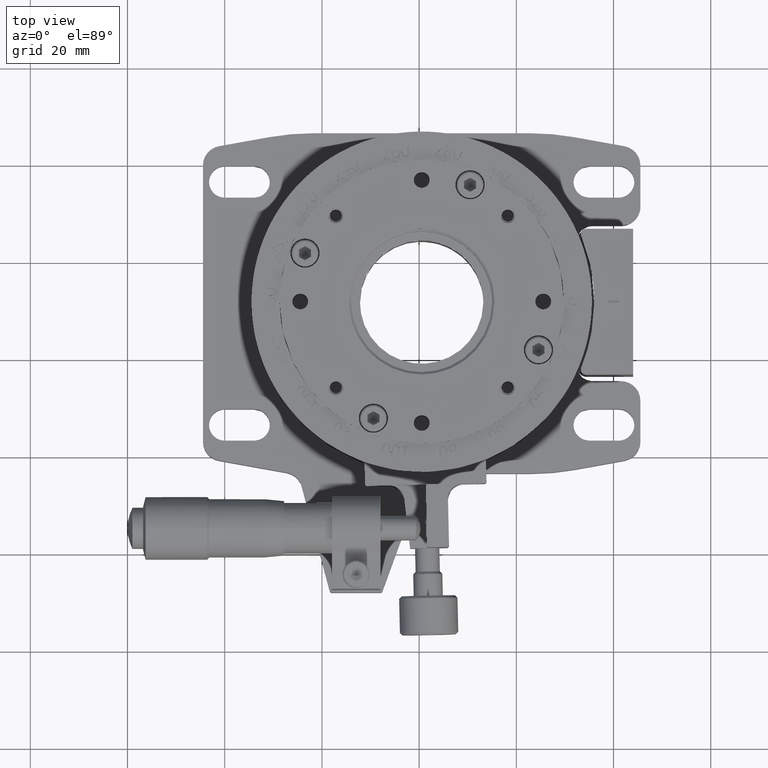
[diagram: clean part render]
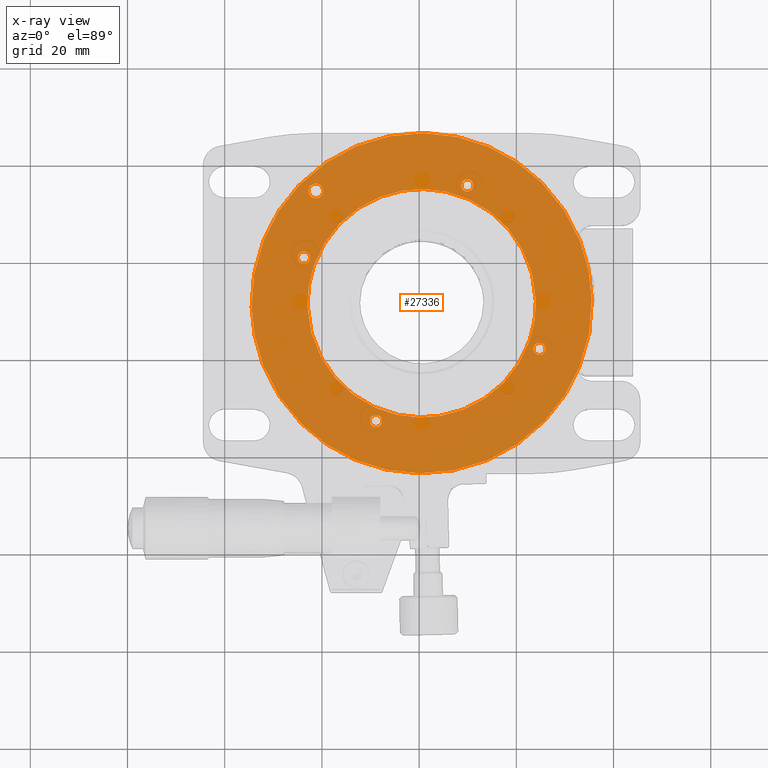
[diagram: x-ray — body ghosted, one internal face saturated and labeled with its STEP entity id]
A machine part, top view, then the same camera in x-ray: the body is ghosted and one INTERNAL B-rep face — a face not visible from any outside direction — is saturated and labeled: STEP entity #27336.
In plain terms, the highlighted face is a freeform B-spline surface patch.
Its self-contained STEP definition (entity closure, byte-faithful):
#599=FACE_BOUND('',#32053,.T.);
#600=FACE_BOUND('',#32054,.T.);
#601=FACE_BOUND('',#32055,.T.);
#602=FACE_BOUND('',#32056,.T.);
#603=FACE_BOUND('',#32057,.T.);
#604=FACE_BOUND('',#32058,.T.);
#2287=(
BOUNDED_CURVE()
B_SPLINE_CURVE(2,(#157761,#157762,#157763,#157764,#157765),
 .UNSPECIFIED.,.F.,.F.)
B_SPLINE_CURVE_WITH_KNOTS((3,2,3),(-219.911485751286,-164.933614313464,
-109.955742875643),.UNSPECIFIED.)
CURVE()
GEOMETRIC_REPRESENTATION_ITEM()
RATIONAL_B_SPLINE_CURVE((1.,0.707106781186548,1.,0.707106781186548,1.))
REPRESENTATION_ITEM('')
);
#2288=(
BOUNDED_CURVE()
B_SPLINE_CURVE(2,(#157766,#157767,#157768,#157769,#157770),
 .UNSPECIFIED.,.F.,.F.)
B_SPLINE_CURVE_WITH_KNOTS((3,2,3),(-219.911485751286,-164.933614313464,
-109.955742875643),.UNSPECIFIED.)
CURVE()
GEOMETRIC_REPRESENTATION_ITEM()
RATIONAL_B_SPLINE_CURVE((1.,0.707106781186548,1.,0.707106781186548,1.))
REPRESENTATION_ITEM('')
);
#2289=(
BOUNDED_CURVE()
B_SPLINE_CURVE(2,(#157771,#157772,#157773,#157774,#157775),
 .UNSPECIFIED.,.F.,.F.)
B_SPLINE_CURVE_WITH_KNOTS((3,2,3),(-109.955742875643,-54.9778714378214,
0.),.UNSPECIFIED.)
CURVE()
GEOMETRIC_REPRESENTATION_ITEM()
RATIONAL_B_SPLINE_CURVE((1.,0.707106781186548,1.,0.707106781186548,1.))
REPRESENTATION_ITEM('')
);
#2290=(
BOUNDED_CURVE()
B_SPLINE_CURVE(2,(#157776,#157777,#157778,#157779,#157780),
 .UNSPECIFIED.,.F.,.F.)
B_SPLINE_CURVE_WITH_KNOTS((3,2,3),(-109.955742875643,-54.9778714378214,
0.),.UNSPECIFIED.)
CURVE()
GEOMETRIC_REPRESENTATION_ITEM()
RATIONAL_B_SPLINE_CURVE((1.,0.707106781186548,1.,0.707106781186548,1.))
REPRESENTATION_ITEM('')
);
#2291=(
BOUNDED_CURVE()
B_SPLINE_CURVE(2,(#157781,#157782,#157783,#157784,#157785),
 .UNSPECIFIED.,.F.,.F.)
B_SPLINE_CURVE_WITH_KNOTS((3,2,3),(4.71238898038469,7.06858347057703,9.42477796076938),
 .UNSPECIFIED.)
CURVE()
GEOMETRIC_REPRESENTATION_ITEM()
RATIONAL_B_SPLINE_CURVE((1.,0.707106781186548,1.,0.707106781186548,1.))
REPRESENTATION_ITEM('')
);
#2292=(
BOUNDED_CURVE()
B_SPLINE_CURVE(2,(#157786,#157787,#157788,#157789,#157790),
 .UNSPECIFIED.,.F.,.F.)
B_SPLINE_CURVE_WITH_KNOTS((3,2,3),(4.71238898038469,7.06858347057703,9.42477796076938),
 .UNSPECIFIED.)
CURVE()
GEOMETRIC_REPRESENTATION_ITEM()
RATIONAL_B_SPLINE_CURVE((1.,0.707106781186548,1.,0.707106781186548,1.))
REPRESENTATION_ITEM('')
);
#2293=(
BOUNDED_CURVE()
B_SPLINE_CURVE(2,(#157791,#157792,#157793,#157794,#157795),
 .UNSPECIFIED.,.F.,.F.)
B_SPLINE_CURVE_WITH_KNOTS((3,2,3),(0.,2.35619449019234,4.71238898038469),
 .UNSPECIFIED.)
CURVE()
GEOMETRIC_REPRESENTATION_ITEM()
RATIONAL_B_SPLINE_CURVE((1.,0.707106781186548,1.,0.707106781186548,1.))
REPRESENTATION_ITEM('')
);
#2294=(
BOUNDED_CURVE()
B_SPLINE_CURVE(2,(#157796,#157797,#157798,#157799,#157800),
 .UNSPECIFIED.,.F.,.F.)
B_SPLINE_CURVE_WITH_KNOTS((3,2,3),(0.,2.35619449019234,4.71238898038469),
 .UNSPECIFIED.)
CURVE()
GEOMETRIC_REPRESENTATION_ITEM()
RATIONAL_B_SPLINE_CURVE((1.,0.707106781186548,1.,0.707106781186548,1.))
REPRESENTATION_ITEM('')
);
#2295=(
BOUNDED_CURVE()
B_SPLINE_CURVE(2,(#157801,#157802,#157803,#157804,#157805),
 .UNSPECIFIED.,.F.,.F.)
B_SPLINE_CURVE_WITH_KNOTS((3,2,3),(3.92699081698724,5.89048622548086,7.85398163397448),
 .UNSPECIFIED.)
CURVE()
GEOMETRIC_REPRESENTATION_ITEM()
RATIONAL_B_SPLINE_CURVE((1.,0.707106781186548,1.,0.707106781186548,1.))
REPRESENTATION_ITEM('')
);
#2296=(
BOUNDED_CURVE()
B_SPLINE_CURVE(2,(#157806,#157807,#157808,#157809,#157810),
 .UNSPECIFIED.,.F.,.F.)
B_SPLINE_CURVE_WITH_KNOTS((3,2,3),(3.92699081698724,5.89048622548086,7.85398163397448),
 .UNSPECIFIED.)
CURVE()
GEOMETRIC_REPRESENTATION_ITEM()
RATIONAL_B_SPLINE_CURVE((1.,0.707106781186548,1.,0.707106781186548,1.))
REPRESENTATION_ITEM('')
);
#2297=(
BOUNDED_CURVE()
B_SPLINE_CURVE(2,(#157811,#157812,#157813,#157814,#157815),
 .UNSPECIFIED.,.F.,.F.)
B_SPLINE_CURVE_WITH_KNOTS((3,2,3),(0.,1.96349540849362,3.92699081698724),
 .UNSPECIFIED.)
CURVE()
GEOMETRIC_REPRESENTATION_ITEM()
RATIONAL_B_SPLINE_CURVE((1.,0.707106781186548,1.,0.707106781186548,1.))
REPRESENTATION_ITEM('')
);
#2298=(
BOUNDED_CURVE()
B_SPLINE_CURVE(2,(#157816,#157817,#157818,#157819,#157820),
 .UNSPECIFIED.,.F.,.F.)
B_SPLINE_CURVE_WITH_KNOTS((3,2,3),(0.,1.96349540849362,3.92699081698724),
 .UNSPECIFIED.)
CURVE()
GEOMETRIC_REPRESENTATION_ITEM()
RATIONAL_B_SPLINE_CURVE((1.,0.707106781186548,1.,0.707106781186548,1.))
REPRESENTATION_ITEM('')
);
#2299=(
BOUNDED_CURVE()
B_SPLINE_CURVE(2,(#157821,#157822,#157823,#157824,#157825),
 .UNSPECIFIED.,.F.,.F.)
B_SPLINE_CURVE_WITH_KNOTS((3,2,3),(3.92699081698724,5.89048622548086,7.85398163397448),
 .UNSPECIFIED.)
CURVE()
GEOMETRIC_REPRESENTATION_ITEM()
RATIONAL_B_SPLINE_CURVE((1.,0.707106781186548,1.,0.707106781186548,1.))
REPRESENTATION_ITEM('')
);
#2300=(
BOUNDED_CURVE()
B_SPLINE_CURVE(2,(#157826,#157827,#157828,#157829,#157830),
 .UNSPECIFIED.,.F.,.F.)
B_SPLINE_CURVE_WITH_KNOTS((3,2,3),(3.92699081698724,5.89048622548086,7.85398163397448),
 .UNSPECIFIED.)
CURVE()
GEOMETRIC_REPRESENTATION_ITEM()
RATIONAL_B_SPLINE_CURVE((1.,0.707106781186548,1.,0.707106781186548,1.))
REPRESENTATION_ITEM('')
);
#2301=(
BOUNDED_CURVE()
B_SPLINE_CURVE(2,(#157831,#157832,#157833,#157834,#157835),
 .UNSPECIFIED.,.F.,.F.)
B_SPLINE_CURVE_WITH_KNOTS((3,2,3),(0.,1.96349540849362,3.92699081698724),
 .UNSPECIFIED.)
CURVE()
GEOMETRIC_REPRESENTATION_ITEM()
RATIONAL_B_SPLINE_CURVE((1.,0.707106781186548,1.,0.707106781186548,1.))
REPRESENTATION_ITEM('')
);
#2302=(
BOUNDED_CURVE()
B_SPLINE_CURVE(2,(#157836,#157837,#157838,#157839,#157840),
 .UNSPECIFIED.,.F.,.F.)
B_SPLINE_CURVE_WITH_KNOTS((3,2,3),(0.,1.96349540849362,3.92699081698724),
 .UNSPECIFIED.)
CURVE()
GEOMETRIC_REPRESENTATION_ITEM()
RATIONAL_B_SPLINE_CURVE((1.,0.707106781186548,1.,0.707106781186548,1.))
REPRESENTATION_ITEM('')
);
#2303=(
BOUNDED_CURVE()
B_SPLINE_CURVE(2,(#157841,#157842,#157843,#157844,#157845),
 .UNSPECIFIED.,.F.,.F.)
B_SPLINE_CURVE_WITH_KNOTS((3,2,3),(3.92699081698724,5.89048622548086,7.85398163397448),
 .UNSPECIFIED.)
CURVE()
GEOMETRIC_REPRESENTATION_ITEM()
RATIONAL_B_SPLINE_CURVE((1.,0.707106781186548,1.,0.707106781186548,1.))
REPRESENTATION_ITEM('')
);
#2304=(
BOUNDED_CURVE()
B_SPLINE_CURVE(2,(#157846,#157847,#157848,#157849,#157850),
 .UNSPECIFIED.,.F.,.F.)
B_SPLINE_CURVE_WITH_KNOTS((3,2,3),(3.92699081698724,5.89048622548086,7.85398163397448),
 .UNSPECIFIED.)
CURVE()
GEOMETRIC_REPRESENTATION_ITEM()
RATIONAL_B_SPLINE_CURVE((1.,0.707106781186548,1.,0.707106781186548,1.))
REPRESENTATION_ITEM('')
);
#2305=(
BOUNDED_CURVE()
B_SPLINE_CURVE(2,(#157851,#157852,#157853,#157854,#157855),
 .UNSPECIFIED.,.F.,.F.)
B_SPLINE_CURVE_WITH_KNOTS((3,2,3),(0.,1.96349540849362,3.92699081698724),
 .UNSPECIFIED.)
CURVE()
GEOMETRIC_REPRESENTATION_ITEM()
RATIONAL_B_SPLINE_CURVE((1.,0.707106781186548,1.,0.707106781186548,1.))
REPRESENTATION_ITEM('')
);
#2306=(
BOUNDED_CURVE()
B_SPLINE_CURVE(2,(#157856,#157857,#157858,#157859,#157860),
 .UNSPECIFIED.,.F.,.F.)
B_SPLINE_CURVE_WITH_KNOTS((3,2,3),(0.,1.96349540849362,3.92699081698724),
 .UNSPECIFIED.)
CURVE()
GEOMETRIC_REPRESENTATION_ITEM()
RATIONAL_B_SPLINE_CURVE((1.,0.707106781186548,1.,0.707106781186548,1.))
REPRESENTATION_ITEM('')
);
#2307=(
BOUNDED_CURVE()
B_SPLINE_CURVE(2,(#157861,#157862,#157863,#157864,#157865),
 .UNSPECIFIED.,.F.,.F.)
B_SPLINE_CURVE_WITH_KNOTS((3,2,3),(3.92699081698724,5.89048622548086,7.85398163397448),
 .UNSPECIFIED.)
CURVE()
GEOMETRIC_REPRESENTATION_ITEM()
RATIONAL_B_SPLINE_CURVE((1.,0.707106781186548,1.,0.707106781186548,1.))
REPRESENTATION_ITEM('')
);
#2308=(
BOUNDED_CURVE()
B_SPLINE_CURVE(2,(#157866,#157867,#157868,#157869,#157870),
 .UNSPECIFIED.,.F.,.F.)
B_SPLINE_CURVE_WITH_KNOTS((3,2,3),(3.92699081698724,5.89048622548086,7.85398163397448),
 .UNSPECIFIED.)
CURVE()
GEOMETRIC_REPRESENTATION_ITEM()
RATIONAL_B_SPLINE_CURVE((1.,0.707106781186548,1.,0.707106781186548,1.))
REPRESENTATION_ITEM('')
);
#2309=(
BOUNDED_CURVE()
B_SPLINE_CURVE(2,(#157871,#157872,#157873,#157874,#157875),
 .UNSPECIFIED.,.F.,.F.)
B_SPLINE_CURVE_WITH_KNOTS((3,2,3),(0.,1.96349540849362,3.92699081698724),
 .UNSPECIFIED.)
CURVE()
GEOMETRIC_REPRESENTATION_ITEM()
RATIONAL_B_SPLINE_CURVE((1.,0.707106781186548,1.,0.707106781186548,1.))
REPRESENTATION_ITEM('')
);
#2310=(
BOUNDED_CURVE()
B_SPLINE_CURVE(2,(#157876,#157877,#157878,#157879,#157880),
 .UNSPECIFIED.,.F.,.F.)
B_SPLINE_CURVE_WITH_KNOTS((3,2,3),(0.,1.96349540849362,3.92699081698724),
 .UNSPECIFIED.)
CURVE()
GEOMETRIC_REPRESENTATION_ITEM()
RATIONAL_B_SPLINE_CURVE((1.,0.707106781186548,1.,0.707106781186548,1.))
REPRESENTATION_ITEM('')
);
#2311=(
BOUNDED_CURVE()
B_SPLINE_CURVE(2,(#157881,#157882,#157883,#157884,#157885),
 .UNSPECIFIED.,.F.,.F.)
B_SPLINE_CURVE_WITH_KNOTS((3,2,3),(73.8274273593601,110.74114103904,147.65485471872),
 .UNSPECIFIED.)
CURVE()
GEOMETRIC_REPRESENTATION_ITEM()
RATIONAL_B_SPLINE_CURVE((1.,0.707106781186548,1.,0.707106781186548,1.))
REPRESENTATION_ITEM('')
);
#2312=(
BOUNDED_CURVE()
B_SPLINE_CURVE(2,(#157886,#157887,#157888,#157889,#157890),
 .UNSPECIFIED.,.F.,.F.)
B_SPLINE_CURVE_WITH_KNOTS((3,2,3),(73.8274273593601,110.74114103904,147.65485471872),
 .UNSPECIFIED.)
CURVE()
GEOMETRIC_REPRESENTATION_ITEM()
RATIONAL_B_SPLINE_CURVE((1.,0.707106781186548,1.,0.707106781186548,1.))
REPRESENTATION_ITEM('')
);
#2313=(
BOUNDED_CURVE()
B_SPLINE_CURVE(2,(#157891,#157892,#157893,#157894,#157895),
 .UNSPECIFIED.,.F.,.F.)
B_SPLINE_CURVE_WITH_KNOTS((3,2,3),(0.,36.9137136796801,73.8274273593601),
 .UNSPECIFIED.)
CURVE()
GEOMETRIC_REPRESENTATION_ITEM()
RATIONAL_B_SPLINE_CURVE((1.,0.707106781186548,1.,0.707106781186548,1.))
REPRESENTATION_ITEM('')
);
#2314=(
BOUNDED_CURVE()
B_SPLINE_CURVE(2,(#157896,#157897,#157898,#157899,#157900),
 .UNSPECIFIED.,.F.,.F.)
B_SPLINE_CURVE_WITH_KNOTS((3,2,3),(0.,36.9137136796801,73.8274273593601),
 .UNSPECIFIED.)
CURVE()
GEOMETRIC_REPRESENTATION_ITEM()
RATIONAL_B_SPLINE_CURVE((1.,0.707106781186548,1.,0.707106781186548,1.))
REPRESENTATION_ITEM('')
);
#27336=ADVANCED_FACE('',(#29666,#599,#600,#601,#602,#603,#604),#129692,
 .T.);
#29666=FACE_OUTER_BOUND('',#32052,.T.);
#32052=EDGE_LOOP('',(#36891,#36892));
#32053=EDGE_LOOP('',(#36893,#36894));
#32054=EDGE_LOOP('',(#36895,#36896));
#32055=EDGE_LOOP('',(#36897,#36898));
#32056=EDGE_LOOP('',(#36899,#36900));
#32057=EDGE_LOOP('',(#36901,#36902));
#32058=EDGE_LOOP('',(#36903,#36904));
#36891=ORIENTED_EDGE('',*,*,#86653,.T.);
#36892=ORIENTED_EDGE('',*,*,#86654,.T.);
#36893=ORIENTED_EDGE('',*,*,#86655,.T.);
#36894=ORIENTED_EDGE('',*,*,#86656,.T.);
#36895=ORIENTED_EDGE('',*,*,#86657,.T.);
#36896=ORIENTED_EDGE('',*,*,#86658,.T.);
#36897=ORIENTED_EDGE('',*,*,#86659,.T.);
#36898=ORIENTED_EDGE('',*,*,#86660,.T.);
#36899=ORIENTED_EDGE('',*,*,#86661,.T.);
#36900=ORIENTED_EDGE('',*,*,#86662,.T.);
#36901=ORIENTED_EDGE('',*,*,#86663,.T.);
#36902=ORIENTED_EDGE('',*,*,#86664,.T.);
#36903=ORIENTED_EDGE('',*,*,#86665,.T.);
#36904=ORIENTED_EDGE('',*,*,#86666,.T.);
#49565=PCURVE('',#129692,#62239);
#49566=PCURVE('',#129692,#62240);
#49567=PCURVE('',#129692,#62241);
#49568=PCURVE('',#129692,#62242);
#49569=PCURVE('',#129692,#62243);
#49570=PCURVE('',#129692,#62244);
#49571=PCURVE('',#129692,#62245);
#49572=PCURVE('',#129692,#62246);
#49573=PCURVE('',#129692,#62247);
#49574=PCURVE('',#129692,#62248);
#49575=PCURVE('',#129692,#62249);
#49576=PCURVE('',#129692,#62250);
#49577=PCURVE('',#129692,#62251);
#49578=PCURVE('',#129692,#62252);
#62239=DEFINITIONAL_REPRESENTATION('',(#2288),#230981);
#62240=DEFINITIONAL_REPRESENTATION('',(#2290),#230981);
#62241=DEFINITIONAL_REPRESENTATION('',(#2292),#230981);
#62242=DEFINITIONAL_REPRESENTATION('',(#2294),#230981);
#62243=DEFINITIONAL_REPRESENTATION('',(#2296),#230981);
#62244=DEFINITIONAL_REPRESENTATION('',(#2298),#230981);
#62245=DEFINITIONAL_REPRESENTATION('',(#2300),#230981);
#62246=DEFINITIONAL_REPRESENTATION('',(#2302),#230981);
#62247=DEFINITIONAL_REPRESENTATION('',(#2304),#230981);
#62248=DEFINITIONAL_REPRESENTATION('',(#2306),#230981);
#62249=DEFINITIONAL_REPRESENTATION('',(#2308),#230981);
#62250=DEFINITIONAL_REPRESENTATION('',(#2310),#230981);
#62251=DEFINITIONAL_REPRESENTATION('',(#2312),#230981);
#62252=DEFINITIONAL_REPRESENTATION('',(#2314),#230981);
#74553=SURFACE_CURVE('',#2287,(#49565),.PCURVE_S1.);
#74554=SURFACE_CURVE('',#2289,(#49566),.PCURVE_S1.);
#74555=SURFACE_CURVE('',#2291,(#49567),.PCURVE_S1.);
#74556=SURFACE_CURVE('',#2293,(#49568),.PCURVE_S1.);
#74557=SURFACE_CURVE('',#2295,(#49569),.PCURVE_S1.);
#74558=SURFACE_CURVE('',#2297,(#49570),.PCURVE_S1.);
#74559=SURFACE_CURVE('',#2299,(#49571),.PCURVE_S1.);
#74560=SURFACE_CURVE('',#2301,(#49572),.PCURVE_S1.);
#74561=SURFACE_CURVE('',#2303,(#49573),.PCURVE_S1.);
#74562=SURFACE_CURVE('',#2305,(#49574),.PCURVE_S1.);
#74563=SURFACE_CURVE('',#2307,(#49575),.PCURVE_S1.);
#74564=SURFACE_CURVE('',#2309,(#49576),.PCURVE_S1.);
#74565=SURFACE_CURVE('',#2311,(#49577),.PCURVE_S1.);
#74566=SURFACE_CURVE('',#2313,(#49578),.PCURVE_S1.);
#86653=EDGE_CURVE('',#120040,#120041,#74553,.T.);
#86654=EDGE_CURVE('',#120041,#120040,#74554,.T.);
#86655=EDGE_CURVE('',#120043,#120042,#74555,.T.);
#86656=EDGE_CURVE('',#120042,#120043,#74556,.T.);
#86657=EDGE_CURVE('',#120045,#120044,#74557,.T.);
#86658=EDGE_CURVE('',#120044,#120045,#74558,.T.);
#86659=EDGE_CURVE('',#120047,#120046,#74559,.T.);
#86660=EDGE_CURVE('',#120046,#120047,#74560,.T.);
#86661=EDGE_CURVE('',#120049,#120048,#74561,.T.);
#86662=EDGE_CURVE('',#120048,#120049,#74562,.T.);
#86663=EDGE_CURVE('',#120051,#120050,#74563,.T.);
#86664=EDGE_CURVE('',#120050,#120051,#74564,.T.);
#86665=EDGE_CURVE('',#120053,#120052,#74565,.T.);
#86666=EDGE_CURVE('',#120052,#120053,#74566,.T.);
#120040=VERTEX_POINT('',#157747);
#120041=VERTEX_POINT('',#157748);
#120042=VERTEX_POINT('',#157749);
#120043=VERTEX_POINT('',#157750);
#120044=VERTEX_POINT('',#157751);
#120045=VERTEX_POINT('',#157752);
#120046=VERTEX_POINT('',#157753);
#120047=VERTEX_POINT('',#157754);
#120048=VERTEX_POINT('',#157755);
#120049=VERTEX_POINT('',#157756);
#120050=VERTEX_POINT('',#157757);
#120051=VERTEX_POINT('',#157758);
#120052=VERTEX_POINT('',#157759);
#120053=VERTEX_POINT('',#157760);
#129692=B_SPLINE_SURFACE_WITH_KNOTS('',1,1,((#157743,#157744),(#157745,
#157746)),.UNSPECIFIED.,.F.,.F.,.F.,(2,2),(2,2),(-43.9250967046672,43.9250967046672),
(-43.9250967046672,43.9250967046672),.UNSPECIFIED.);
#157743=CARTESIAN_POINT('',(89.9016646918699,-77.9263176725837,26.4953598283897));
#157744=CARTESIAN_POINT('',(87.9263176725838,9.90166469187042,26.4953598283897));
#157745=CARTESIAN_POINT('',(2.07368232741578,-79.9016646918698,26.4953598283897));
#157746=CARTESIAN_POINT('',(0.0983353081296833,7.92631767258433,26.4953598283897));
#157747=CARTESIAN_POINT('',(79.991150997617,-34.2130108882869,26.4953598283897));
#157748=CARTESIAN_POINT('',(10.0088490023826,-35.7869891117125,26.4953598283897));
#157749=CARTESIAN_POINT('',(24.7299348912218,-11.8888173136989,26.4953598283897));
#157750=CARTESIAN_POINT('',(21.7299348912218,-11.8888173136989,26.4953598283897));
#157751=CARTESIAN_POINT('',(67.9888352908157,-44.4352415103427,26.4953598283897));
#157752=CARTESIAN_POINT('',(70.4882032192169,-44.3790280023633,26.4953598283897));
#157753=CARTESIAN_POINT('',(53.1574507921525,-10.7895874989729,26.4953598283897));
#157754=CARTESIAN_POINT('',(55.6568187205537,-10.7333739909933,26.4953598283897));
#157755=CARTESIAN_POINT('',(19.5117967807826,-25.6209719976361,26.4953598283897));
#157756=CARTESIAN_POINT('',(22.0111647091838,-25.5647584896567,26.4953598283897));
#157757=CARTESIAN_POINT('',(34.3431812794459,-59.266626009006,26.4953598283897));
#157758=CARTESIAN_POINT('',(36.8425492078471,-59.2104125010264,26.4953598283897));
#157759=CARTESIAN_POINT('',(68.4940585269713,-34.4715930249925,26.4953598283897));
#157760=CARTESIAN_POINT('',(21.5059414730283,-35.5284069750069,26.4953598283897));
#157761=CARTESIAN_POINT('',(79.991150997617,-34.2130108882869,26.4953598283897));
#157762=CARTESIAN_POINT('',(80.7781401093298,-69.2041618859041,26.4953598283897));
#157763=CARTESIAN_POINT('',(45.7869891117126,-69.9911509976169,26.4953598283897));
#157764=CARTESIAN_POINT('',(10.7958381140954,-70.7781401093297,26.4953598283897));
#157765=CARTESIAN_POINT('',(10.0088490023826,-35.7869891117125,26.4953598283897));
#157766=CARTESIAN_POINT('',(-35.,-3.98570065840431E-14));
#157767=CARTESIAN_POINT('',(-35.,-35.));
#157768=CARTESIAN_POINT('',(4.2632564145606E-14,-35.));
#157769=CARTESIAN_POINT('',(35.0000000000001,-35.));
#157770=CARTESIAN_POINT('',(35.,3.96349619791181E-14));
#157771=CARTESIAN_POINT('',(10.0088490023826,-35.7869891117125,26.4953598283897));
#157772=CARTESIAN_POINT('',(9.22185989066983,-0.795838114095321,26.4953598283897));
#157773=CARTESIAN_POINT('',(44.213010888287,-0.00884900238252584,26.4953598283897));
#157774=CARTESIAN_POINT('',(79.2041618859042,0.778140109330265,26.4953598283897));
#157775=CARTESIAN_POINT('',(79.991150997617,-34.2130108882869,26.4953598283897));
#157776=CARTESIAN_POINT('',(35.,3.96349619791181E-14));
#157777=CARTESIAN_POINT('',(35.,35.));
#157778=CARTESIAN_POINT('',(-3.5527136788005E-14,35.));
#157779=CARTESIAN_POINT('',(-35.0000000000001,35.));
#157780=CARTESIAN_POINT('',(-35.,-3.98570065840431E-14));
#157781=CARTESIAN_POINT('',(21.7299348912218,-11.8888173136989,26.4953598283897));
#157782=CARTESIAN_POINT('',(21.7299348912218,-13.3888173136989,26.4953598283897));
#157783=CARTESIAN_POINT('',(23.2299348912218,-13.3888173136989,26.4953598283897));
#157784=CARTESIAN_POINT('',(24.7299348912218,-13.3888173136989,26.4953598283897));
#157785=CARTESIAN_POINT('',(24.7299348912218,-11.8888173136989,26.4953598283897));
#157786=CARTESIAN_POINT('',(22.7445175089345,23.628576313695));
#157787=CARTESIAN_POINT('',(22.7782456137222,22.1289555566542));
#157788=CARTESIAN_POINT('',(21.2786248566815,22.0952274518665));
#157789=CARTESIAN_POINT('',(19.7790040996408,22.0614993470789));
#157790=CARTESIAN_POINT('',(19.7452759948531,23.5611201041196));
#157791=CARTESIAN_POINT('',(24.7299348912218,-11.8888173136989,26.4953598283897));
#157792=CARTESIAN_POINT('',(24.7299348912218,-10.3888173136989,26.4953598283897));
#157793=CARTESIAN_POINT('',(23.2299348912218,-10.3888173136989,26.4953598283897));
#157794=CARTESIAN_POINT('',(21.7299348912218,-10.3888173136989,26.4953598283897));
#157795=CARTESIAN_POINT('',(21.7299348912218,-11.8888173136989,26.4953598283897));
#157796=CARTESIAN_POINT('',(19.7452759948531,23.5611201041196));
#157797=CARTESIAN_POINT('',(19.7115478900654,25.0607408611603));
#157798=CARTESIAN_POINT('',(21.2111686471061,25.094468965948));
#157799=CARTESIAN_POINT('',(22.7107894041469,25.1281970707357));
#157800=CARTESIAN_POINT('',(22.7445175089345,23.628576313695));
#157801=CARTESIAN_POINT('',(70.4882032192169,-44.3790280023633,26.4953598283897));
#157802=CARTESIAN_POINT('',(70.4600964652272,-43.1293440381627,26.4953598283897));
#157803=CARTESIAN_POINT('',(69.2104125010266,-43.1574507921524,26.4953598283897));
#157804=CARTESIAN_POINT('',(67.960728536826,-43.1855575461421,26.4953598283897));
#157805=CARTESIAN_POINT('',(67.9888352908157,-44.4352415103427,26.4953598283897));
#157806=CARTESIAN_POINT('',(-25.2708678452934,-9.94976924149236));
#157807=CARTESIAN_POINT('',(-25.2708678452934,-8.69976924149236));
#157808=CARTESIAN_POINT('',(-24.0208678452934,-8.69976924149231));
#157809=CARTESIAN_POINT('',(-22.7708678452934,-8.69976924149226));
#157810=CARTESIAN_POINT('',(-22.7708678452934,-9.94976924149227));
#157811=CARTESIAN_POINT('',(67.9888352908157,-44.4352415103427,26.4953598283897));
#157812=CARTESIAN_POINT('',(68.0169420448054,-45.6849254745433,26.4953598283897));
#157813=CARTESIAN_POINT('',(69.266626009006,-45.6568187205536,26.4953598283897));
#157814=CARTESIAN_POINT('',(70.5163099732066,-45.6287119665639,26.4953598283897));
#157815=CARTESIAN_POINT('',(70.4882032192169,-44.3790280023633,26.4953598283897));
#157816=CARTESIAN_POINT('',(-22.7708678452934,-9.94976924149227));
#157817=CARTESIAN_POINT('',(-22.7708678452933,-11.1997692414923));
#157818=CARTESIAN_POINT('',(-24.0208678452933,-11.1997692414923));
#157819=CARTESIAN_POINT('',(-25.2708678452933,-11.1997692414924));
#157820=CARTESIAN_POINT('',(-25.2708678452934,-9.94976924149236));
#157821=CARTESIAN_POINT('',(55.6568187205537,-10.7333739909933,26.4953598283897));
#157822=CARTESIAN_POINT('',(55.6287119665639,-9.48369002679269,26.4953598283897));
#157823=CARTESIAN_POINT('',(54.3790280023633,-9.51179678078249,26.4953598283897));
#157824=CARTESIAN_POINT('',(53.1293440381627,-9.53990353477229,26.4953598283897));
#157825=CARTESIAN_POINT('',(53.1574507921525,-10.7895874989729,26.4953598283897));
#157826=CARTESIAN_POINT('',(-11.1997692414923,24.0208678452935));
#157827=CARTESIAN_POINT('',(-11.1997692414923,25.2708678452935));
#157828=CARTESIAN_POINT('',(-9.94976924149226,25.2708678452935));
#157829=CARTESIAN_POINT('',(-8.69976924149225,25.2708678452934));
#157830=CARTESIAN_POINT('',(-8.69976924149231,24.0208678452934));
#157831=CARTESIAN_POINT('',(53.1574507921525,-10.7895874989729,26.4953598283897));
#157832=CARTESIAN_POINT('',(53.1855575461423,-12.0392714631735,26.4953598283897));
#157833=CARTESIAN_POINT('',(54.4352415103429,-12.0111647091837,26.4953598283897));
#157834=CARTESIAN_POINT('',(55.6849254745435,-11.9830579551939,26.4953598283897));
#157835=CARTESIAN_POINT('',(55.6568187205537,-10.7333739909933,26.4953598283897));
#157836=CARTESIAN_POINT('',(-8.69976924149231,24.0208678452934));
#157837=CARTESIAN_POINT('',(-8.69976924149237,22.7708678452934));
#157838=CARTESIAN_POINT('',(-9.94976924149238,22.7708678452935));
#157839=CARTESIAN_POINT('',(-11.1997692414924,22.7708678452935));
#157840=CARTESIAN_POINT('',(-11.1997692414923,24.0208678452935));
#157841=CARTESIAN_POINT('',(22.0111647091838,-25.5647584896567,26.4953598283897));
#157842=CARTESIAN_POINT('',(21.9830579551941,-24.3150745254561,26.4953598283897));
#157843=CARTESIAN_POINT('',(20.7333739909935,-24.3431812794458,26.4953598283897));
#157844=CARTESIAN_POINT('',(19.4836900267929,-24.3712880334355,26.4953598283897));
#157845=CARTESIAN_POINT('',(19.5117967807826,-25.6209719976361,26.4953598283897));
#157846=CARTESIAN_POINT('',(22.7708678452935,9.94976924149227));
#157847=CARTESIAN_POINT('',(22.7708678452934,11.1997692414923));
#157848=CARTESIAN_POINT('',(24.0208678452934,11.1997692414923));
#157849=CARTESIAN_POINT('',(25.2708678452934,11.1997692414924));
#157850=CARTESIAN_POINT('',(25.2708678452935,9.94976924149236));
#157851=CARTESIAN_POINT('',(19.5117967807826,-25.6209719976361,26.4953598283897));
#157852=CARTESIAN_POINT('',(19.5399035347723,-26.8706559618367,26.4953598283897));
#157853=CARTESIAN_POINT('',(20.7895874989729,-26.842549207847,26.4953598283897));
#157854=CARTESIAN_POINT('',(22.0392714631735,-26.8144424538573,26.4953598283897));
#157855=CARTESIAN_POINT('',(22.0111647091838,-25.5647584896567,26.4953598283897));
#157856=CARTESIAN_POINT('',(25.2708678452935,9.94976924149236));
#157857=CARTESIAN_POINT('',(25.2708678452935,8.69976924149236));
#157858=CARTESIAN_POINT('',(24.0208678452935,8.69976924149232));
#157859=CARTESIAN_POINT('',(22.7708678452935,8.69976924149227));
#157860=CARTESIAN_POINT('',(22.7708678452935,9.94976924149227));
#157861=CARTESIAN_POINT('',(36.8425492078471,-59.2104125010264,26.4953598283897));
#157862=CARTESIAN_POINT('',(36.8144424538573,-57.9607285368258,26.4953598283897));
#157863=CARTESIAN_POINT('',(35.5647584896567,-57.9888352908156,26.4953598283897));
#157864=CARTESIAN_POINT('',(34.3150745254561,-58.0169420448054,26.4953598283897));
#157865=CARTESIAN_POINT('',(34.3431812794459,-59.266626009006,26.4953598283897));
#157866=CARTESIAN_POINT('',(8.69976924149231,-24.0208678452933));
#157867=CARTESIAN_POINT('',(8.69976924149237,-22.7708678452933));
#157868=CARTESIAN_POINT('',(9.94976924149237,-22.7708678452934));
#157869=CARTESIAN_POINT('',(11.1997692414924,-22.7708678452934));
#157870=CARTESIAN_POINT('',(11.1997692414923,-24.0208678452934));
#157871=CARTESIAN_POINT('',(34.3431812794459,-59.266626009006,26.4953598283897));
#157872=CARTESIAN_POINT('',(34.3712880334357,-60.5163099732066,26.4953598283897));
#157873=CARTESIAN_POINT('',(35.6209719976363,-60.4882032192168,26.4953598283897));
#157874=CARTESIAN_POINT('',(36.8706559618369,-60.460096465227,26.4953598283897));
#157875=CARTESIAN_POINT('',(36.8425492078471,-59.2104125010264,26.4953598283897));
#157876=CARTESIAN_POINT('',(11.1997692414923,-24.0208678452934));
#157877=CARTESIAN_POINT('',(11.1997692414923,-25.2708678452934));
#157878=CARTESIAN_POINT('',(9.94976924149226,-25.2708678452934));
#157879=CARTESIAN_POINT('',(8.69976924149225,-25.2708678452933));
#157880=CARTESIAN_POINT('',(8.69976924149231,-24.0208678452933));
#157881=CARTESIAN_POINT('',(21.5059414730283,-35.5284069750069,26.4953598283897));
#157882=CARTESIAN_POINT('',(22.0343484480355,-59.0224655019784,26.4953598283897));
#157883=CARTESIAN_POINT('',(45.528406975007,-58.4940585269712,26.4953598283897));
#157884=CARTESIAN_POINT('',(69.0224655019785,-57.965651551964,26.4953598283897));
#157885=CARTESIAN_POINT('',(68.4940585269713,-34.4715930249925,26.4953598283897));
#157886=CARTESIAN_POINT('',(23.5,-8.99280649946377E-15));
#157887=CARTESIAN_POINT('',(23.5,-23.5));
#157888=CARTESIAN_POINT('',(0.,-23.5));
#157889=CARTESIAN_POINT('',(-23.5,-23.5));
#157890=CARTESIAN_POINT('',(-23.5,8.99280649946377E-15));
#157891=CARTESIAN_POINT('',(68.4940585269713,-34.4715930249925,26.4953598283897));
#157892=CARTESIAN_POINT('',(67.9656515519641,-10.977534498021,26.4953598283897));
#157893=CARTESIAN_POINT('',(44.4715930249926,-11.5059414730282,26.4953598283897));
#157894=CARTESIAN_POINT('',(20.9775344980211,-12.0343484480354,26.4953598283897));
#157895=CARTESIAN_POINT('',(21.5059414730283,-35.5284069750069,26.4953598283897));
#157896=CARTESIAN_POINT('',(-23.5,8.99280649946377E-15));
#157897=CARTESIAN_POINT('',(-23.5,23.5));
#157898=CARTESIAN_POINT('',(7.105427357601E-15,23.5));
#157899=CARTESIAN_POINT('',(23.5,23.5));
#157900=CARTESIAN_POINT('',(23.5,-8.99280649946377E-15));
#230981=(
GEOMETRIC_REPRESENTATION_CONTEXT(2)
PARAMETRIC_REPRESENTATION_CONTEXT()
REPRESENTATION_CONTEXT('pspace','')
);